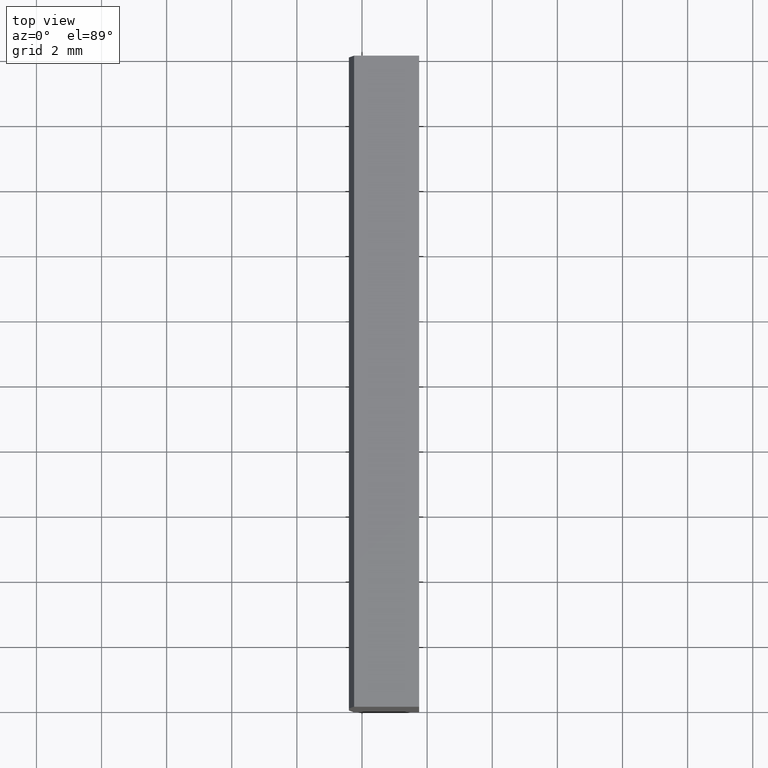
[diagram: clean part render]
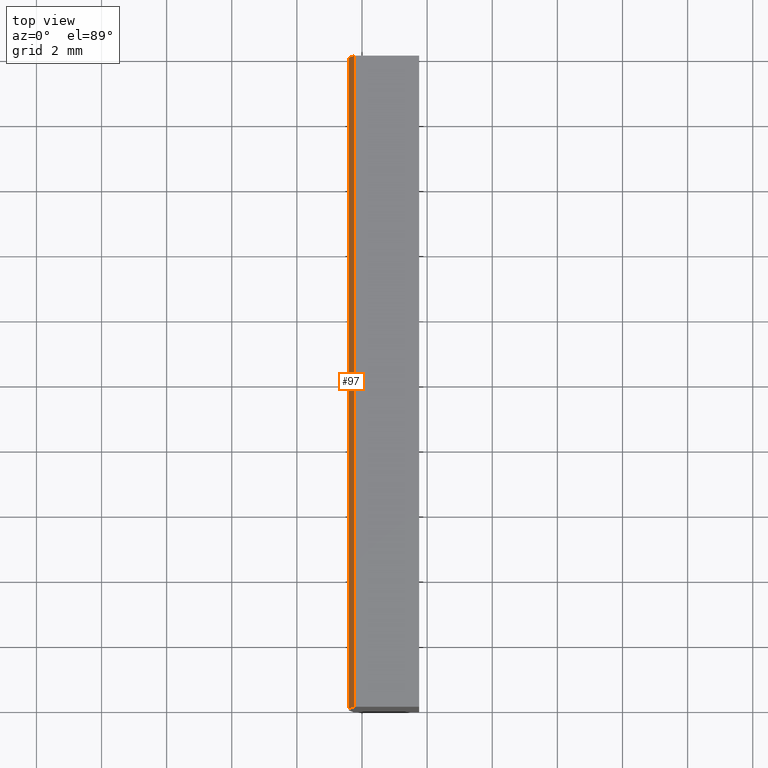
[diagram: same view with one face highlighted and labeled with its STEP entity id]
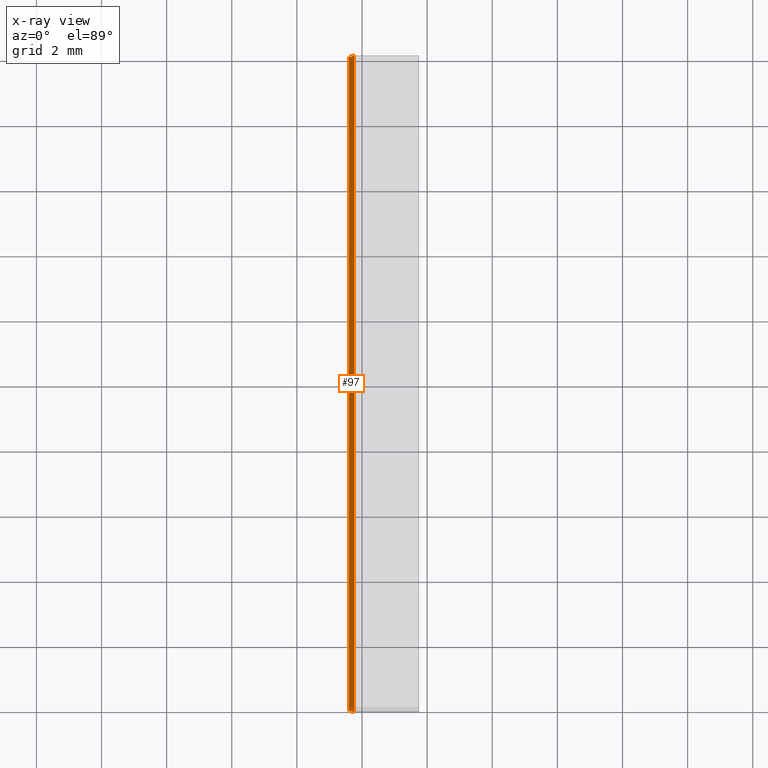
[diagram: x-ray of the same camera — body ghosted, the highlighted face saturated]
A machine part, top view. The second image highlights one B-rep face of the part: STEP entity #97.
The next image is the same camera in x-ray: the body ghosted, the highlighted face saturated — about 0% of this face is hidden behind the body in this view.
In plain terms, the highlighted cylindrical surface (partial cylindrical patch) has radius 68.78 mm, axis along (-0, -1, -0).
Its self-contained STEP definition (entity closure, byte-faithful):
#1 = CARTESIAN_POINT ( 'NONE',  ( -64.24281604474863600, 20.00000000000000000, 5.000000000000000000 ) ) ;
#2 = LINE ( 'NONE', #107, #136 ) ;
#9 = AXIS2_PLACEMENT_3D ( 'NONE', #69, #173, #154 ) ;
#20 = AXIS2_PLACEMENT_3D ( 'NONE', #200, #56, #129 ) ;
#26 = ORIENTED_EDGE ( 'NONE', *, *, #81, .T. ) ;
#27 = CARTESIAN_POINT ( 'NONE',  ( -64.24281604474863600, 20.00000000000000000, -5.000000000000000000 ) ) ;
#29 = VECTOR ( 'NONE', #142, 1000.000000000000000 ) ;
#36 = CARTESIAN_POINT ( 'NONE',  ( 4.355204334851265500, 20.00000000000000000, 4.286263797015675000E-017 ) ) ;
#38 = CIRCLE ( 'NONE', #146, 68.78000000000000100 ) ;
#39 = CARTESIAN_POINT ( 'NONE',  ( -64.24281604474863600, 0.0000000000000000000, 5.000000000000000000 ) ) ;
#50 = VERTEX_POINT ( 'NONE', #27 ) ;
#54 = EDGE_CURVE ( 'NONE', #50, #181, #38, .T. ) ;
#56 = DIRECTION ( 'NONE',  ( -0.0000000000000000000, -1.000000000000000000, -0.0000000000000000000 ) ) ;
#57 = DIRECTION ( 'NONE',  ( -0.0000000000000000000, -1.000000000000000000, -0.0000000000000000000 ) ) ;
#69 = CARTESIAN_POINT ( 'NONE',  ( 4.355204334851265500, 0.0000000000000000000, 4.286263797015675000E-017 ) ) ;
#72 = ORIENTED_EDGE ( 'NONE', *, *, #151, .T. ) ;
#81 = EDGE_CURVE ( 'NONE', #50, #161, #103, .T. ) ;
#97 = ADVANCED_FACE ( 'NONE', ( #194 ), #166, .T. ) ;
#99 = VERTEX_POINT ( 'NONE', #39 ) ;
#103 = LINE ( 'NONE', #192, #29 ) ;
#107 = CARTESIAN_POINT ( 'NONE',  ( -64.24281604474863600, 20.00000000000000000, 5.000000000000000000 ) ) ;
#112 = CIRCLE ( 'NONE', #9, 68.78000000000000100 ) ;
#113 = EDGE_CURVE ( 'NONE', #181, #99, #2, .T. ) ;
#119 = DIRECTION ( 'NONE',  ( 0.0000000000000000000, 0.0000000000000000000, 1.000000000000000000 ) ) ;
#129 = DIRECTION ( 'NONE',  ( 0.0000000000000000000, 0.0000000000000000000, -1.000000000000000000 ) ) ;
#132 = ORIENTED_EDGE ( 'NONE', *, *, #54, .F. ) ;
#133 = CARTESIAN_POINT ( 'NONE',  ( -64.24281604474863600, 0.0000000000000000000, -5.000000000000000000 ) ) ;
#136 = VECTOR ( 'NONE', #57, 1000.000000000000000 ) ;
#142 = DIRECTION ( 'NONE',  ( -0.0000000000000000000, -1.000000000000000000, -0.0000000000000000000 ) ) ;
#146 = AXIS2_PLACEMENT_3D ( 'NONE', #36, #156, #119 ) ;
#151 = EDGE_CURVE ( 'NONE', #161, #99, #112, .T. ) ;
#153 = EDGE_LOOP ( 'NONE', ( #72, #199, #132, #26 ) ) ;
#154 = DIRECTION ( 'NONE',  ( 0.0000000000000000000, 0.0000000000000000000, 1.000000000000000000 ) ) ;
#156 = DIRECTION ( 'NONE',  ( 0.0000000000000000000, 1.000000000000000000, 0.0000000000000000000 ) ) ;
#161 = VERTEX_POINT ( 'NONE', #133 ) ;
#166 = CYLINDRICAL_SURFACE ( 'NONE', #20, 68.78000000000000100 ) ;
#173 = DIRECTION ( 'NONE',  ( 0.0000000000000000000, 1.000000000000000000, 0.0000000000000000000 ) ) ;
#181 = VERTEX_POINT ( 'NONE', #1 ) ;
#192 = CARTESIAN_POINT ( 'NONE',  ( -64.24281604474863600, 20.00000000000000000, -5.000000000000000000 ) ) ;
#194 = FACE_OUTER_BOUND ( 'NONE', #153, .T. ) ;
#199 = ORIENTED_EDGE ( 'NONE', *, *, #113, .F. ) ;
#200 = CARTESIAN_POINT ( 'NONE',  ( 4.355204334851265500, 20.00000000000000000, 4.286263797015675000E-017 ) ) ;